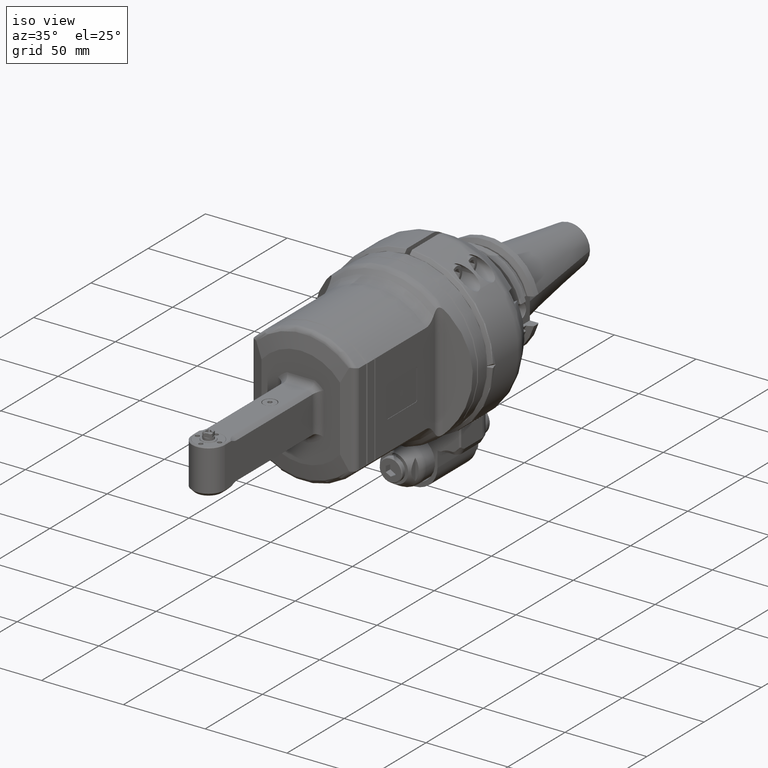
[diagram: clean part render]
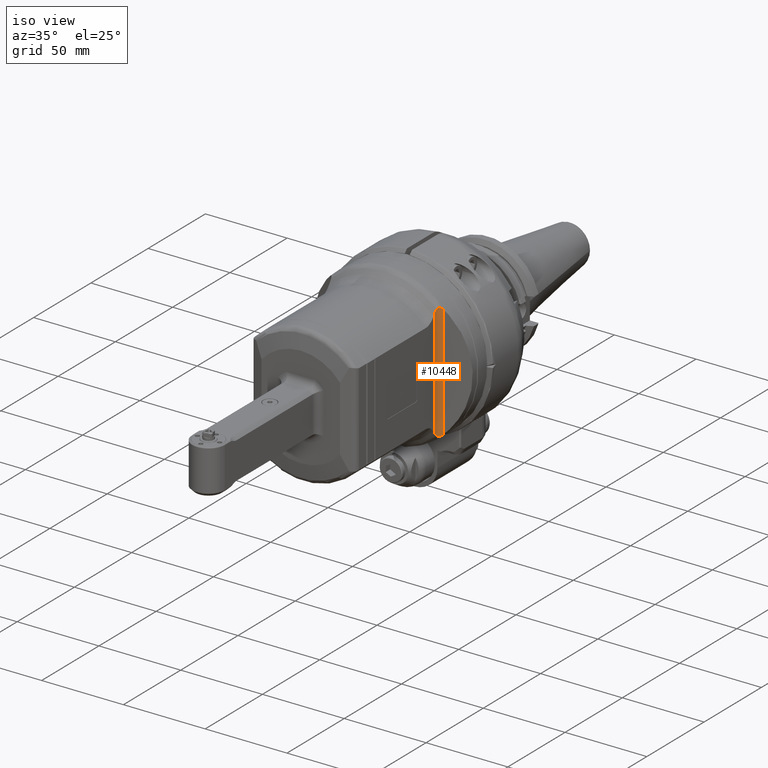
[diagram: same view with one face highlighted and labeled with its STEP entity id]
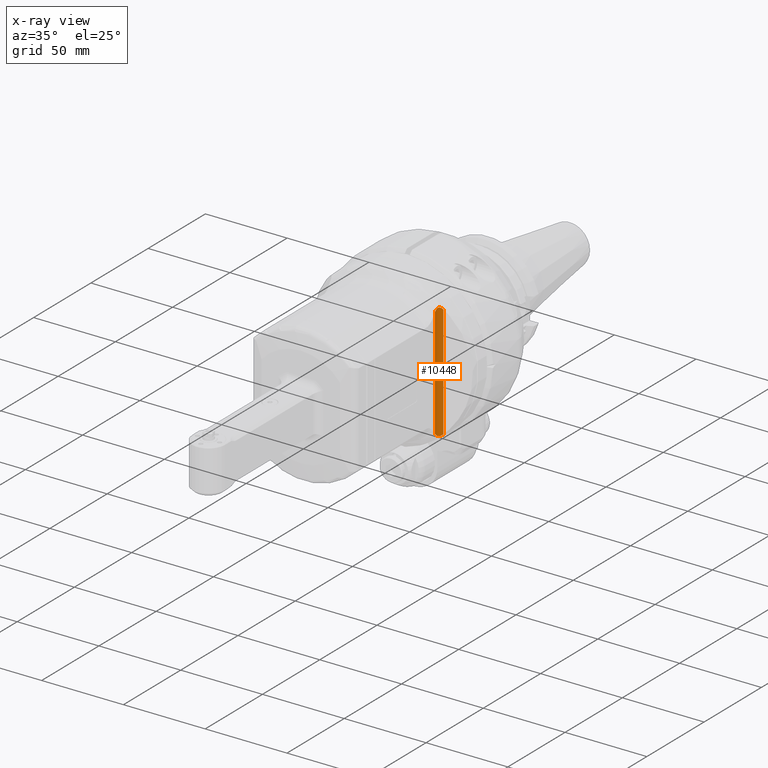
[diagram: x-ray of the same camera — body ghosted, the highlighted face saturated]
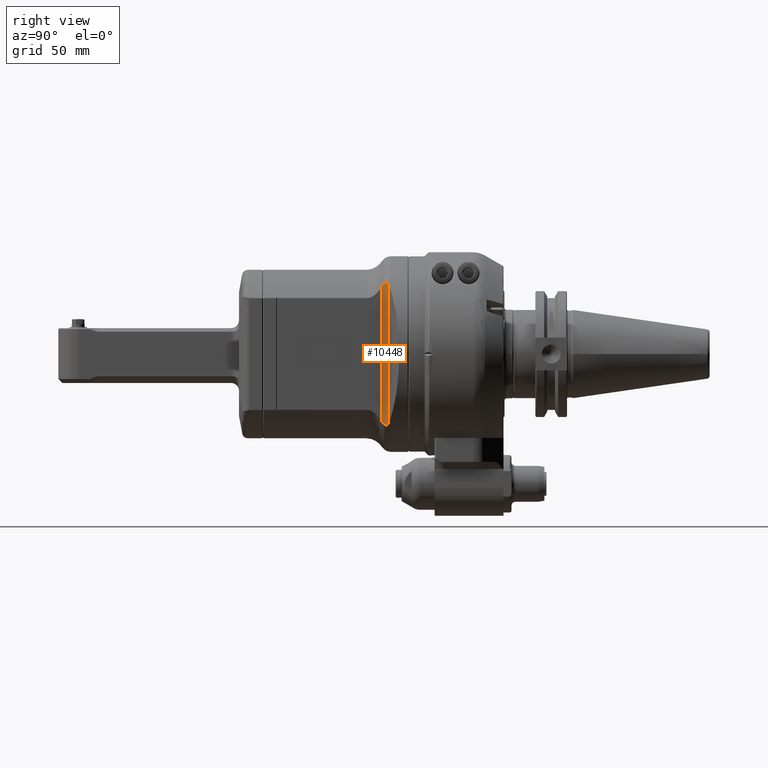
[diagram: same view with one face highlighted and labeled with its STEP entity id]
A machine part, iso view. The second image highlights one B-rep face of the part: STEP entity #10448.
The next image is the same camera in x-ray: the body ghosted, the highlighted face saturated — about 0% of this face is hidden behind the body in this view.
A second angle (right view) of the same face is appended — the face is thin or edge-on in the first view.
In plain terms, the highlighted cylindrical surface (edge-blend (fillet) strip) has radius 4 mm, axis along (-0, 0, -1).
Its self-contained STEP definition (entity closure, byte-faithful):
#397=B_SPLINE_CURVE_WITH_KNOTS('',3,(#16271,#16272,#16273,#16274,#16275,
#16276,#16277,#16278,#16279,#16280,#16281,#16282,#16283,#16284,#16285,#16286),
 .UNSPECIFIED.,.F.,.F.,(4,3,3,3,3,4),(0.,0.2,0.4,0.6,0.8,0.999999794124968),
 .UNSPECIFIED.);
#400=B_SPLINE_CURVE_WITH_KNOTS('',3,(#16311,#16312,#16313,#16314,#16315,
#16316,#16317,#16318,#16319,#16320),.UNSPECIFIED.,.F.,.F.,(4,3,3,4),(7.1553818548813,
7.24747598999974,7.62320964298718,7.89672009950679),.UNSPECIFIED.);
#405=B_SPLINE_CURVE_WITH_KNOTS('',3,(#16370,#16371,#16372,#16373,#16374,
#16375,#16376,#16377,#16378,#16379),.UNSPECIFIED.,.F.,.F.,(4,3,3,4),(1.25466641579625,
1.33366635334958,1.59877209448939,1.92070516616804),.UNSPECIFIED.);
#406=B_SPLINE_CURVE_WITH_KNOTS('',3,(#16381,#16382,#16383,#16384,#16385,
#16386,#16387,#16388,#16389,#16390,#16391,#16392,#16393,#16394,#16395,#16396),
 .UNSPECIFIED.,.F.,.F.,(4,3,3,3,3,4),(9.59352139122036E-7,0.2,0.4,0.6,0.8,
1.),.UNSPECIFIED.);
#615=LINE('',#16218,#1347);
#629=LINE('',#16511,#1361);
#1347=VECTOR('',#12626,66.84160300858);
#1361=VECTOR('',#12744,69.01788791009);
#2026=CYLINDRICAL_SURFACE('',#11272,4.);
#2249=FACE_OUTER_BOUND('',#2895,.T.);
#2895=EDGE_LOOP('',(#7105,#7106,#7107,#7108,#7109,#7110));
#4252=VERTEX_POINT('',#16213);
#4253=VERTEX_POINT('',#16217);
#4263=VERTEX_POINT('',#16252);
#4269=VERTEX_POINT('',#16310);
#4276=VERTEX_POINT('',#16344);
#4278=VERTEX_POINT('',#16363);
#5315=EDGE_CURVE('',#4253,#4252,#615,.T.);
#5329=EDGE_CURVE('',#4263,#4253,#397,.T.);
#5334=EDGE_CURVE('',#4269,#4263,#400,.T.);
#5348=EDGE_CURVE('',#4276,#4278,#405,.T.);
#5349=EDGE_CURVE('',#4252,#4276,#406,.T.);
#5378=EDGE_CURVE('',#4269,#4278,#629,.T.);
#7105=ORIENTED_EDGE('',*,*,#5334,.T.);
#7106=ORIENTED_EDGE('',*,*,#5329,.T.);
#7107=ORIENTED_EDGE('',*,*,#5315,.T.);
#7108=ORIENTED_EDGE('',*,*,#5349,.T.);
#7109=ORIENTED_EDGE('',*,*,#5348,.T.);
#7110=ORIENTED_EDGE('',*,*,#5378,.F.);
#10448=ADVANCED_FACE('',(#2249),#2026,.F.);
#11272=AXIS2_PLACEMENT_3D('',#16510,#12742,#12743);
#12626=DIRECTION('',(-1.533572553029E-12,1.,3.374146633328E-12));
#12742=DIRECTION('center_axis',(0.,1.,0.));
#12743=DIRECTION('ref_axis',(0.,0.,-1.));
#12744=DIRECTION('',(0.,1.,0.));
#16213=CARTESIAN_POINT('',(9.73152227524531,33.4208045046687,32.0000006443278));
#16217=CARTESIAN_POINT('',(9.73152281962003,-33.4208027084784,32.0000011272698));
#16218=CARTESIAN_POINT('',(9.731521981753,-33.42080150517,32.00000048242));
#16252=CARTESIAN_POINT('',(8.464251895864,-34.96449019495,32.20605403651));
#16271=CARTESIAN_POINT('Ctrl Pts',(8.46425189586141,-34.9644901949481,32.2060540365082));
#16272=CARTESIAN_POINT('Ctrl Pts',(8.54002567152763,-34.8848563307483,32.1807437509284));
#16273=CARTESIAN_POINT('Ctrl Pts',(8.61780320398598,-34.8007371085439,32.1572906951329));
#16274=CARTESIAN_POINT('Ctrl Pts',(8.69739868142658,-34.7120667452559,32.1359880245492));
#16275=CARTESIAN_POINT('Ctrl Pts',(8.77699415886719,-34.6233963819679,32.1146853539655));
#16276=CARTESIAN_POINT('Ctrl Pts',(8.85840766163179,-34.5301749366323,32.0955331231707));
#16277=CARTESIAN_POINT('Ctrl Pts',(8.94152463696613,-34.432256584415,32.07878796175));
#16278=CARTESIAN_POINT('Ctrl Pts',(9.02464161230047,-34.3343382321976,32.0620428003292));
#16279=CARTESIAN_POINT('Ctrl Pts',(9.10946213108216,-34.2317230247374,32.0477047569052));
#16280=CARTESIAN_POINT('Ctrl Pts',(9.19584698888427,-34.1242785539741,32.0360307686375));
#16281=CARTESIAN_POINT('Ctrl Pts',(9.28223184668638,-34.0168340832109,32.0243567803698));
#16282=CARTESIAN_POINT('Ctrl Pts',(9.37018112009566,-33.904560406156,32.0153468985115));
#16283=CARTESIAN_POINT('Ctrl Pts',(9.45953174360618,-33.7873347066308,32.0092580650817));
#16284=CARTESIAN_POINT('Ctrl Pts',(9.5488822751414,-33.6701091277748,32.0031692379197));
#16285=CARTESIAN_POINT('Ctrl Pts',(9.63963415275625,-33.5479315329025,32.0000014554529));
#16286=CARTESIAN_POINT('Ctrl Pts',(9.73152309563294,-33.4208029079813,32.0000014496947));
#16310=CARTESIAN_POINT('',(5.972751717779,-34.50894395504,34.6319194267));
#16311=CARTESIAN_POINT('Ctrl Pts',(5.97275171777826,-34.5089439550407,34.6319194267004));
#16312=CARTESIAN_POINT('Ctrl Pts',(6.02264478547084,-34.6314391294081,34.4948393498273));
#16313=CARTESIAN_POINT('Ctrl Pts',(6.08126519883513,-34.749541571942,34.3569863588148));
#16314=CARTESIAN_POINT('Ctrl Pts',(6.15006935831876,-34.8610655454434,34.2186534485951));
#16315=CARTESIAN_POINT('Ctrl Pts',(6.43078254543176,-35.3160707410017,33.6542708240298));
#16316=CARTESIAN_POINT('Ctrl Pts',(6.83692729724181,-35.6087276804309,33.1646983477227));
#16317=CARTESIAN_POINT('Ctrl Pts',(7.3569706269629,-35.5696404753567,32.7810708577846));
#16318=CARTESIAN_POINT('Ctrl Pts',(7.73552944752921,-35.5411874496058,32.5018141846807));
#16319=CARTESIAN_POINT('Ctrl Pts',(8.13789456086564,-35.3074729151278,32.3150653306731));
#16320=CARTESIAN_POINT('Ctrl Pts',(8.46425189586207,-34.9644901949494,32.2060540365062));
#16344=CARTESIAN_POINT('',(8.464251895864,34.96449019495,32.20605403651));
#16363=CARTESIAN_POINT('',(5.972751717779,34.50894395504,34.6319194267));
#16370=CARTESIAN_POINT('Ctrl Pts',(8.46425189586208,34.9644901949494,32.2060540365062));
#16371=CARTESIAN_POINT('Ctrl Pts',(8.36114034629997,35.0728544814484,32.2404958040291));
#16372=CARTESIAN_POINT('Ctrl Pts',(8.25176515095573,35.171441203025,32.2815513553324));
#16373=CARTESIAN_POINT('Ctrl Pts',(8.13385684791608,35.2578596543706,32.3329214052871));
#16374=CARTESIAN_POINT('Ctrl Pts',(7.73818352168381,35.5478602328728,32.5053075563071));
#16375=CARTESIAN_POINT('Ctrl Pts',(7.27612041210993,35.6352550242145,32.8020361892854));
#16376=CARTESIAN_POINT('Ctrl Pts',(6.91666232007668,35.5157844682075,33.1580704000271));
#16377=CARTESIAN_POINT('Ctrl Pts',(6.48015178955982,35.3707045355546,33.5904231155661));
#16378=CARTESIAN_POINT('Ctrl Pts',(6.1774820199419,35.0115884149153,34.0694275444262));
#16379=CARTESIAN_POINT('Ctrl Pts',(5.97275171777826,34.5089439550407,34.6319194267004));
#16381=CARTESIAN_POINT('Ctrl Pts',(9.7315220557643,33.420804346027,32.0000014503378));
#16382=CARTESIAN_POINT('Ctrl Pts',(9.63950613168635,33.5481086242916,32.0000014800491));
#16383=CARTESIAN_POINT('Ctrl Pts',(9.54864901057675,33.6704224294341,32.0031781014017));
#16384=CARTESIAN_POINT('Ctrl Pts',(9.45921828277659,33.7877459433713,32.0092794414854));
#16385=CARTESIAN_POINT('Ctrl Pts',(9.36978712599658,33.905070020084,32.015380810836));
#16386=CARTESIAN_POINT('Ctrl Pts',(9.28178237701402,34.0174037612173,32.0244069244606));
#16387=CARTESIAN_POINT('Ctrl Pts',(9.19536851751317,34.1248736429831,32.0360954567815));
#16388=CARTESIAN_POINT('Ctrl Pts',(9.10895465801233,34.2323435247489,32.0477839891023));
#16389=CARTESIAN_POINT('Ctrl Pts',(9.02413160960892,34.3349494888225,32.0621348876374));
#16390=CARTESIAN_POINT('Ctrl Pts',(8.94103957947617,34.4328279886229,32.0788857163828));
#16391=CARTESIAN_POINT('Ctrl Pts',(8.85794754934343,34.5307064884233,32.0956365451282));
#16392=CARTESIAN_POINT('Ctrl Pts',(8.77658646496289,34.6238574711103,32.114787254342));
#16393=CARTESIAN_POINT('Ctrl Pts',(8.69707144166451,34.7124312824217,32.1360756184066));
#16394=CARTESIAN_POINT('Ctrl Pts',(8.61755641836613,34.8010050937331,32.1573639824713));
#16395=CARTESIAN_POINT('Ctrl Pts',(8.53988737408941,34.885001673371,32.180789945641));
#16396=CARTESIAN_POINT('Ctrl Pts',(8.46425189586141,34.9644901949481,32.2060540365082));
#16510=CARTESIAN_POINT('Origin',(9.731522200923,0.,36.));
#16511=CARTESIAN_POINT('',(5.972751717779,-34.50894395504,34.6319194267));